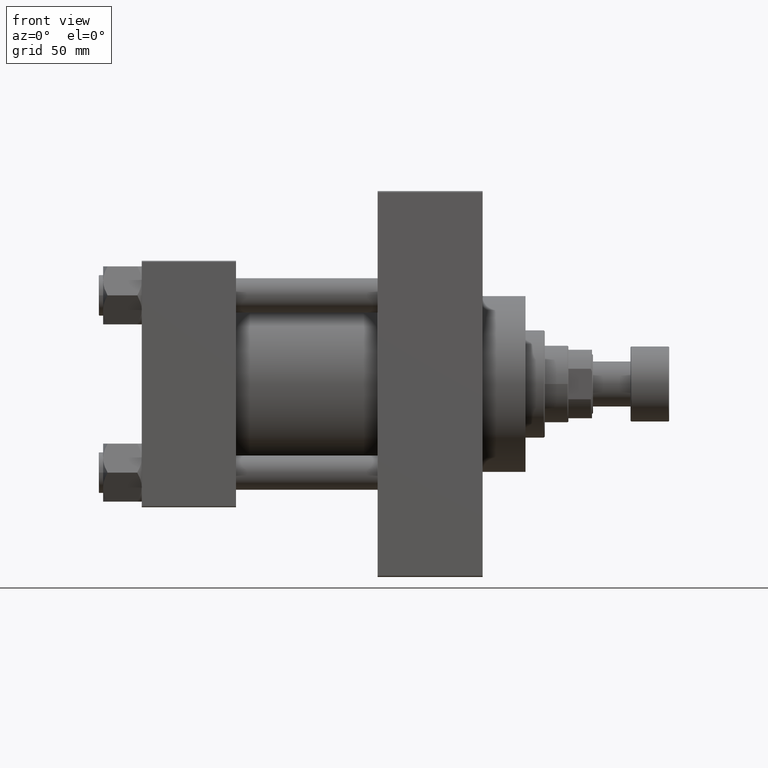
[diagram: clean part render]
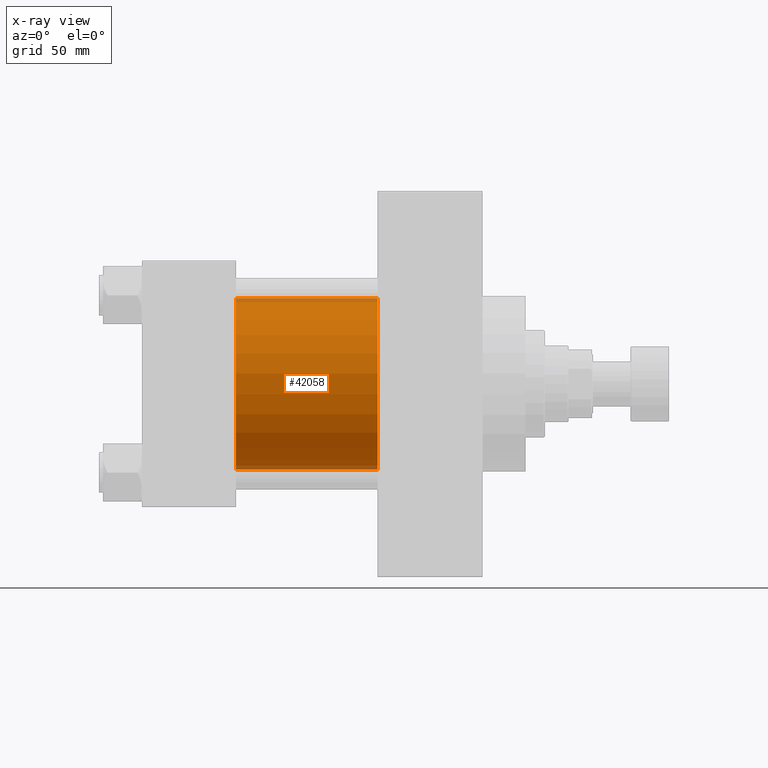
[diagram: x-ray — body ghosted, one internal face saturated and labeled with its STEP entity id]
A machine part, front view, then the same camera in x-ray: the body is ghosted and one INTERNAL B-rep face — a face not visible from any outside direction — is saturated and labeled: STEP entity #42058.
In plain terms, the highlighted cylindrical surface (partial cylindrical patch) has radius 40 mm, axis along (-1, -0, -0).
Its self-contained STEP definition (entity closure, byte-faithful):
#165 = AXIS2_PLACEMENT_3D ( 'NONE', #23518, #31057, #4538 ) ;
#446 = LINE ( 'NONE', #41095, #19694 ) ;
#610 = EDGE_LOOP ( 'NONE', ( #39535, #35181, #36041, #15943 ) ) ;
#1753 = DIRECTION ( 'NONE',  ( 1.000000000000000000, 0.000000000000000000, 0.000000000000000000 ) ) ;
#3252 = CARTESIAN_POINT ( 'NONE',  ( 110.0000000000000000, 2.296501982624201990E-15, -40.00000000000000000 ) ) ;
#4538 = DIRECTION ( 'NONE',  ( 0.000000000000000000, 0.000000000000000000, -1.000000000000000000 ) ) ;
#4820 = DIRECTION ( 'NONE',  ( -1.000000000000000000, -0.000000000000000000, -0.000000000000000000 ) ) ;
#5099 = CARTESIAN_POINT ( 'NONE',  ( 110.0000000000000000, -2.602085213965210642E-15, 0.000000000000000000 ) ) ;
#5855 = EDGE_CURVE ( 'NONE', #41269, #24979, #7144, .T. ) ;
#7144 = LINE ( 'NONE', #3252, #20899 ) ;
#9830 = AXIS2_PLACEMENT_3D ( 'NONE', #5099, #38680, #12645 ) ;
#11845 = CIRCLE ( 'NONE', #165, 40.00000000000000000 ) ;
#11938 = FACE_OUTER_BOUND ( 'NONE', #610, .T. ) ;
#12227 = CARTESIAN_POINT ( 'NONE',  ( 110.0000000000000000, -2.602085213965210642E-15, 0.000000000000000000 ) ) ;
#12645 = DIRECTION ( 'NONE',  ( 0.000000000000000000, 0.000000000000000000, 1.000000000000000000 ) ) ;
#13470 = CIRCLE ( 'NONE', #31359, 40.00000000000000000 ) ;
#15245 = CARTESIAN_POINT ( 'NONE',  ( 44.00000000000000000, -2.602085213965210642E-15, 40.00000000000000000 ) ) ;
#15943 = ORIENTED_EDGE ( 'NONE', *, *, #16231, .F. ) ;
#16231 = EDGE_CURVE ( 'NONE', #26276, #25659, #446, .T. ) ;
#16600 = DIRECTION ( 'NONE',  ( 0.000000000000000000, 0.000000000000000000, -1.000000000000000000 ) ) ;
#19694 = VECTOR ( 'NONE', #4820, 1000.000000000000000 ) ;
#20899 = VECTOR ( 'NONE', #40010, 1000.000000000000000 ) ;
#20991 = CARTESIAN_POINT ( 'NONE',  ( 110.0000000000000000, -2.602085213965210642E-15, 40.00000000000000000 ) ) ;
#23518 = CARTESIAN_POINT ( 'NONE',  ( 44.00000000000000000, -2.602085213965210642E-15, 0.000000000000000000 ) ) ;
#23921 = EDGE_CURVE ( 'NONE', #25659, #24979, #11845, .T. ) ;
#24979 = VERTEX_POINT ( 'NONE', #25581 ) ;
#25581 = CARTESIAN_POINT ( 'NONE',  ( 44.00000000000000000, 2.296501982624201990E-15, -40.00000000000000000 ) ) ;
#25659 = VERTEX_POINT ( 'NONE', #15245 ) ;
#26276 = VERTEX_POINT ( 'NONE', #20991 ) ;
#30198 = EDGE_CURVE ( 'NONE', #26276, #41269, #13470, .T. ) ;
#31057 = DIRECTION ( 'NONE',  ( 1.000000000000000000, 0.000000000000000000, 0.000000000000000000 ) ) ;
#31359 = AXIS2_PLACEMENT_3D ( 'NONE', #12227, #1753, #16600 ) ;
#31609 = CARTESIAN_POINT ( 'NONE',  ( 110.0000000000000000, 2.296501982624201990E-15, -40.00000000000000000 ) ) ;
#35181 = ORIENTED_EDGE ( 'NONE', *, *, #5855, .T. ) ;
#36041 = ORIENTED_EDGE ( 'NONE', *, *, #23921, .F. ) ;
#38443 = CYLINDRICAL_SURFACE ( 'NONE', #9830, 40.00000000000000000 ) ;
#38680 = DIRECTION ( 'NONE',  ( -1.000000000000000000, -0.000000000000000000, -0.000000000000000000 ) ) ;
#39535 = ORIENTED_EDGE ( 'NONE', *, *, #30198, .T. ) ;
#40010 = DIRECTION ( 'NONE',  ( -1.000000000000000000, -0.000000000000000000, -0.000000000000000000 ) ) ;
#41095 = CARTESIAN_POINT ( 'NONE',  ( 110.0000000000000000, -2.602085213965210642E-15, 40.00000000000000000 ) ) ;
#41269 = VERTEX_POINT ( 'NONE', #31609 ) ;
#42058 = ADVANCED_FACE ( 'NONE', ( #11938 ), #38443, .F. ) ;